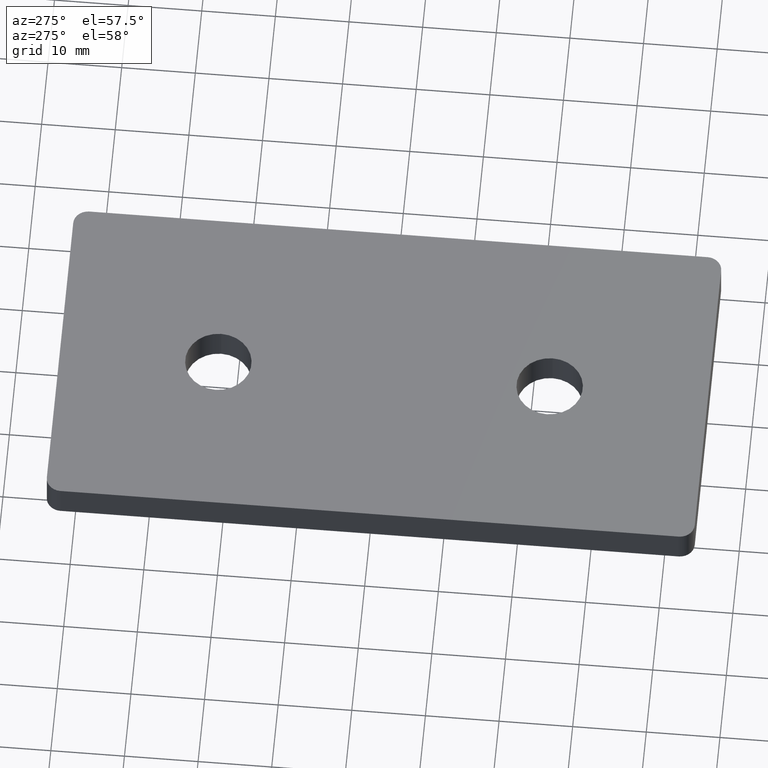
[diagram: clean part render]
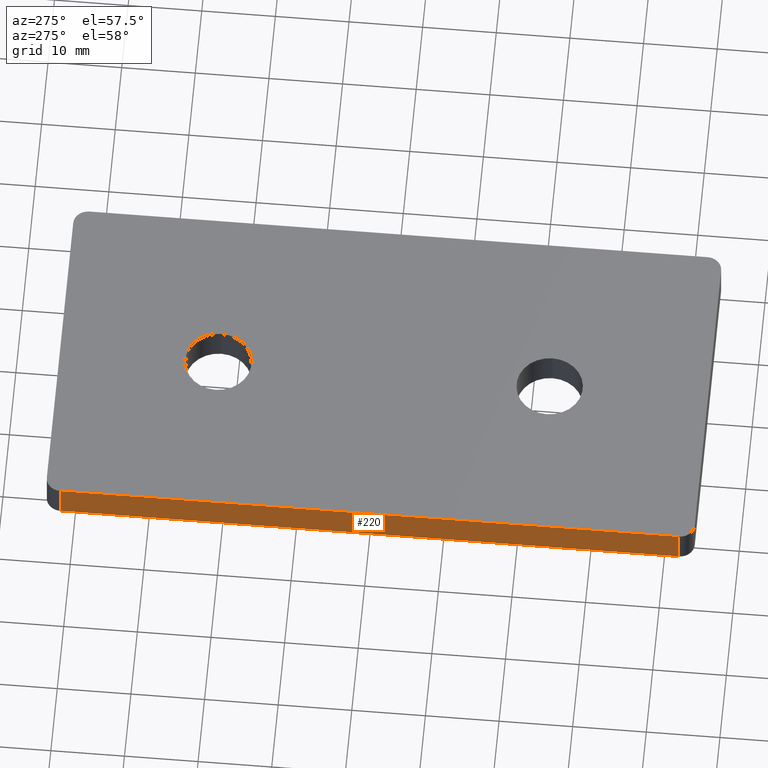
[diagram: same view with one face highlighted and labeled with its STEP entity id]
A machine part, auxiliary view. The second image highlights one B-rep face of the part: STEP entity #220.
In plain terms, the highlighted planar face has unit normal (-1, 0, 0).
Its self-contained STEP definition (entity closure, byte-faithful):
#24=PLANE('',#246);
#36=FACE_OUTER_BOUND('',#52,.T.);
#52=EDGE_LOOP('',(#187,#188,#189,#190));
#60=LINE('',#331,#76);
#65=LINE('',#350,#81);
#70=LINE('',#364,#86);
#71=LINE('',#372,#87);
#76=VECTOR('',#264,84.);
#81=VECTOR('',#283,5.);
#86=VECTOR('',#298,5.);
#87=VECTOR('',#309,84.);
#106=VERTEX_POINT('',#328);
#107=VERTEX_POINT('',#330);
#114=VERTEX_POINT('',#348);
#118=VERTEX_POINT('',#362);
#127=EDGE_CURVE('',#106,#107,#60,.T.);
#137=EDGE_CURVE('',#114,#106,#65,.T.);
#144=EDGE_CURVE('',#107,#118,#70,.T.);
#147=EDGE_CURVE('',#114,#118,#71,.T.);
#187=ORIENTED_EDGE('',*,*,#137,.F.);
#188=ORIENTED_EDGE('',*,*,#147,.T.);
#189=ORIENTED_EDGE('',*,*,#144,.F.);
#190=ORIENTED_EDGE('',*,*,#127,.F.);
#220=ADVANCED_FACE('',(#36),#24,.T.);
#246=AXIS2_PLACEMENT_3D('',#371,#307,#308);
#264=DIRECTION('',(0.,1.,0.));
#283=DIRECTION('',(0.,0.,-1.));
#298=DIRECTION('',(0.,0.,1.));
#307=DIRECTION('center_axis',(-1.,0.,0.));
#308=DIRECTION('ref_axis',(0.,0.,1.));
#309=DIRECTION('',(0.,1.,0.));
#328=CARTESIAN_POINT('',(-22.5,-42.,0.));
#330=CARTESIAN_POINT('',(-22.5,42.,0.));
#331=CARTESIAN_POINT('',(-22.5,-44.,0.));
#348=CARTESIAN_POINT('',(-22.5,-42.,5.));
#350=CARTESIAN_POINT('',(-22.5,-42.,0.));
#362=CARTESIAN_POINT('',(-22.5,42.,5.));
#364=CARTESIAN_POINT('',(-22.5,42.,0.));
#371=CARTESIAN_POINT('Origin',(-22.5,-44.,0.));
#372=CARTESIAN_POINT('',(-22.5,-44.,5.));